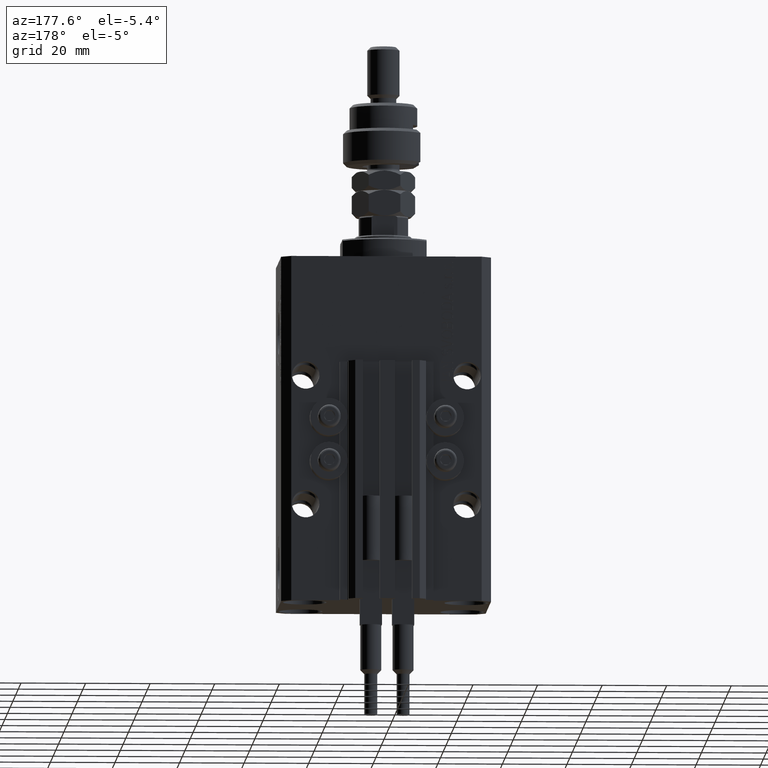
[diagram: clean part render]
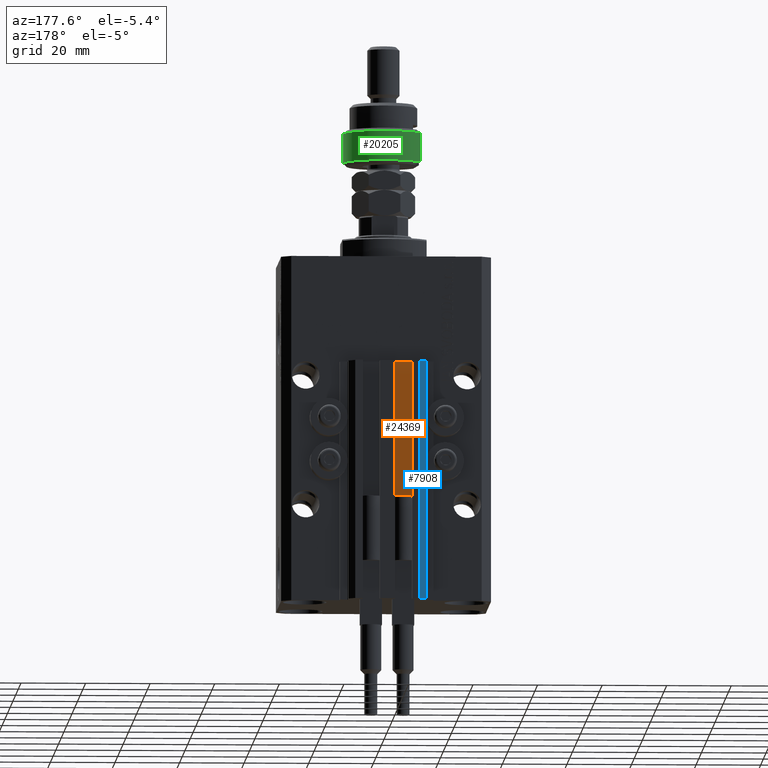
[diagram: same view with three faces highlighted in distinct colors, each labeled with its STEP entity id]
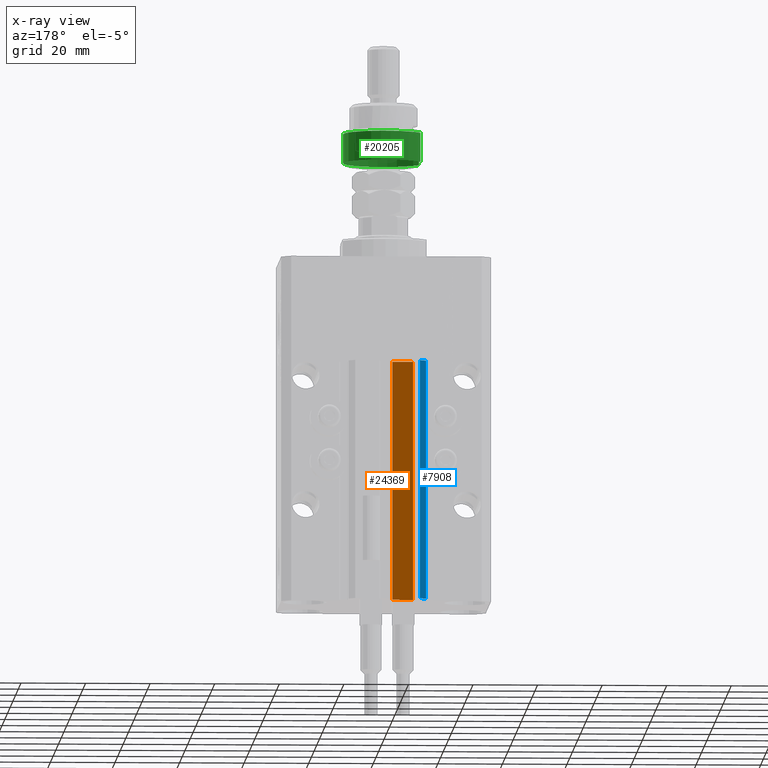
[diagram: x-ray of the same camera — body ghosted, the three highlighted faces saturated]
A machine part, auxiliary view with three faces highlighted in distinct colors.
The next image is the same camera in x-ray (body ghosted, the three faces saturated) — at least one of them is partly hidden behind the body in this view.
Their STEP definitions:

[orange] entity #24369 — the highlighted planar face has unit normal (0, 1, 0).
#3075 = CARTESIAN_POINT ( 'NONE',  ( -1.800000000000000933, 24.49999999999949551, -33.00000000000000000 ) ) ;
#3227 = DIRECTION ( 'NONE',  ( 0.000000000000000000, 0.000000000000000000, 1.000000000000000000 ) ) ;
#3411 = CARTESIAN_POINT ( 'NONE',  ( -1.800000000000000933, 24.49999999999949551, -107.0000000000000000 ) ) ;
#7481 = VECTOR ( 'NONE', #15901, 1000.000000000000000 ) ;
#10298 = DIRECTION ( 'NONE',  ( 0.000000000000000000, 0.000000000000000000, 1.000000000000000000 ) ) ;
#11101 = EDGE_CURVE ( 'NONE', #12050, #41238, #50702, .T. ) ;
#11255 = AXIS2_PLACEMENT_3D ( 'NONE', #43229, #14927, #3227 ) ;
#12050 = VERTEX_POINT ( 'NONE', #25206 ) ;
#12468 = ORIENTED_EDGE ( 'NONE', *, *, #11101, .T. ) ;
#14927 = DIRECTION ( 'NONE',  ( 0.000000000000000000, 1.000000000000000000, -0.000000000000000000 ) ) ;
#15492 = ORIENTED_EDGE ( 'NONE', *, *, #19281, .F. ) ;
#15901 = DIRECTION ( 'NONE',  ( -1.000000000000000000, 0.000000000000000000, 0.000000000000000000 ) ) ;
#19281 = EDGE_CURVE ( 'NONE', #50244, #19423, #31918, .T. ) ;
#19423 = VERTEX_POINT ( 'NONE', #25369 ) ;
#19702 = CARTESIAN_POINT ( 'NONE',  ( -1.800000000000000933, 24.49999999999949551, -33.00000000000000000 ) ) ;
#21013 = LINE ( 'NONE', #36852, #39804 ) ;
#24369 = ADVANCED_FACE ( 'NONE', ( #38552 ), #50518, .T. ) ;
#24386 = DIRECTION ( 'NONE',  ( 0.000000000000000000, 0.000000000000000000, 1.000000000000000000 ) ) ;
#25206 = CARTESIAN_POINT ( 'NONE',  ( -1.800000000000000933, 24.49999999999949551, -107.0000000000000000 ) ) ;
#25334 = VECTOR ( 'NONE', #10298, 1000.000000000000000 ) ;
#25369 = CARTESIAN_POINT ( 'NONE',  ( -8.199999999999999289, 24.49999999999949551, -33.00000000000000000 ) ) ;
#25888 = VECTOR ( 'NONE', #35544, 1000.000000000000000 ) ;
#30053 = CARTESIAN_POINT ( 'NONE',  ( -1.800000000000000933, 24.49999999999949551, -107.0000000000000000 ) ) ;
#31918 = LINE ( 'NONE', #19702, #25888 ) ;
#34452 = LINE ( 'NONE', #30053, #25334 ) ;
#35544 = DIRECTION ( 'NONE',  ( -1.000000000000000000, 0.000000000000000000, 0.000000000000000000 ) ) ;
#36852 = CARTESIAN_POINT ( 'NONE',  ( -8.199999999999999289, 24.49999999999949551, -107.0000000000000000 ) ) ;
#38552 = FACE_OUTER_BOUND ( 'NONE', #47971, .T. ) ;
#39804 = VECTOR ( 'NONE', #24386, 1000.000000000000000 ) ;
#40412 = EDGE_CURVE ( 'NONE', #41238, #19423, #21013, .T. ) ;
#41238 = VERTEX_POINT ( 'NONE', #46236 ) ;
#43003 = ORIENTED_EDGE ( 'NONE', *, *, #50509, .F. ) ;
#43229 = CARTESIAN_POINT ( 'NONE',  ( -1.800000000000000933, 24.49999999999949551, -107.0000000000000000 ) ) ;
#46236 = CARTESIAN_POINT ( 'NONE',  ( -8.199999999999999289, 24.49999999999949551, -107.0000000000000000 ) ) ;
#47155 = ORIENTED_EDGE ( 'NONE', *, *, #40412, .T. ) ;
#47971 = EDGE_LOOP ( 'NONE', ( #15492, #43003, #12468, #47155 ) ) ;
#50244 = VERTEX_POINT ( 'NONE', #3075 ) ;
#50509 = EDGE_CURVE ( 'NONE', #12050, #50244, #34452, .T. ) ;
#50518 = PLANE ( 'NONE',  #11255 ) ;
#50702 = LINE ( 'NONE', #3411, #7481 ) ;

[blue] entity #7908 — the highlighted planar face has unit normal (-0.7071, 0.7071, 0).
#381 = DIRECTION ( 'NONE',  ( -0.7071067811865479058, 0.7071067811865472397, 0.000000000000000000 ) ) ;
#456 = DIRECTION ( 'NONE',  ( 0.000000000000000000, 0.000000000000000000, 1.000000000000000000 ) ) ;
#643 = PLANE ( 'NONE',  #19833 ) ;
#719 = ORIENTED_EDGE ( 'NONE', *, *, #13197, .F. ) ;
#2297 = DIRECTION ( 'NONE',  ( -0.7071067811865472397, -0.7071067811865479058, 0.000000000000000000 ) ) ;
#4660 = VERTEX_POINT ( 'NONE', #38214 ) ;
#6710 = LINE ( 'NONE', #17642, #42912 ) ;
#7908 = ADVANCED_FACE ( 'NONE', ( #8428 ), #643, .T. ) ;
#8428 = FACE_OUTER_BOUND ( 'NONE', #11026, .T. ) ;
#11026 = EDGE_LOOP ( 'NONE', ( #22731, #719, #24728, #18980 ) ) ;
#12900 = CARTESIAN_POINT ( 'NONE',  ( -12.00000000000000000, 28.49999999999948841, -107.0000000000000000 ) ) ;
#13197 = EDGE_CURVE ( 'NONE', #4660, #18402, #15570, .T. ) ;
#15570 = LINE ( 'NONE', #27505, #26636 ) ;
#17424 = EDGE_CURVE ( 'NONE', #48822, #29091, #32653, .T. ) ;
#17642 = CARTESIAN_POINT ( 'NONE',  ( -10.00000000000000000, 30.49999999999948841, -33.00000000000000000 ) ) ;
#18402 = VERTEX_POINT ( 'NONE', #38402 ) ;
#18980 = ORIENTED_EDGE ( 'NONE', *, *, #17424, .T. ) ;
#19833 = AXIS2_PLACEMENT_3D ( 'NONE', #36473, #381, #24510 ) ;
#19964 = DIRECTION ( 'NONE',  ( 0.000000000000000000, 0.000000000000000000, 1.000000000000000000 ) ) ;
#22731 = ORIENTED_EDGE ( 'NONE', *, *, #31754, .F. ) ;
#24510 = DIRECTION ( 'NONE',  ( -0.7071067811865472397, -0.7071067811865479058, 0.000000000000000000 ) ) ;
#24728 = ORIENTED_EDGE ( 'NONE', *, *, #30479, .T. ) ;
#26636 = VECTOR ( 'NONE', #19964, 1000.000000000000000 ) ;
#26643 = CARTESIAN_POINT ( 'NONE',  ( -12.00000000000000000, 28.49999999999948841, -33.00000000000000000 ) ) ;
#27505 = CARTESIAN_POINT ( 'NONE',  ( -10.00000000000000000, 30.49999999999948841, -107.0000000000000000 ) ) ;
#29091 = VERTEX_POINT ( 'NONE', #26643 ) ;
#29701 = LINE ( 'NONE', #46043, #43696 ) ;
#30479 = EDGE_CURVE ( 'NONE', #4660, #48822, #29701, .T. ) ;
#31754 = EDGE_CURVE ( 'NONE', #18402, #29091, #6710, .T. ) ;
#32653 = LINE ( 'NONE', #12900, #49938 ) ;
#36473 = CARTESIAN_POINT ( 'NONE',  ( -10.00000000000000000, 30.49999999999948841, -107.0000000000000000 ) ) ;
#37375 = CARTESIAN_POINT ( 'NONE',  ( -12.00000000000000000, 28.49999999999948841, -107.0000000000000000 ) ) ;
#38214 = CARTESIAN_POINT ( 'NONE',  ( -10.00000000000000000, 30.49999999999948841, -107.0000000000000000 ) ) ;
#38254 = DIRECTION ( 'NONE',  ( -0.7071067811865472397, -0.7071067811865479058, 0.000000000000000000 ) ) ;
#38402 = CARTESIAN_POINT ( 'NONE',  ( -10.00000000000000000, 30.49999999999948841, -33.00000000000000000 ) ) ;
#42912 = VECTOR ( 'NONE', #2297, 999.9999999999998863 ) ;
#43696 = VECTOR ( 'NONE', #38254, 999.9999999999998863 ) ;
#46043 = CARTESIAN_POINT ( 'NONE',  ( -10.00000000000000000, 30.49999999999948841, -107.0000000000000000 ) ) ;
#48822 = VERTEX_POINT ( 'NONE', #37375 ) ;
#49938 = VECTOR ( 'NONE', #456, 1000.000000000000000 ) ;

[green] entity #20205 — the highlighted cylindrical surface (partial cylindrical patch) has radius 12.5 mm, axis along (-0, -0, -1).
#892 = DIRECTION ( 'NONE',  ( -0.000000000000000000, -0.000000000000000000, -1.000000000000000000 ) ) ;
#1852 = VECTOR ( 'NONE', #2963, 1000.000000000000000 ) ;
#2258 = ORIENTED_EDGE ( 'NONE', *, *, #45756, .T. ) ;
#2281 = CARTESIAN_POINT ( 'NONE',  ( -11.22497216032182088, -5.500000000000007105, 10.00000000000000000 ) ) ;
#2963 = DIRECTION ( 'NONE',  ( -0.000000000000000000, -0.000000000000000000, -1.000000000000000000 ) ) ;
#3402 = CYLINDRICAL_SURFACE ( 'NONE', #41700, 12.50000000000000000 ) ;
#4174 = DIRECTION ( 'NONE',  ( -0.000000000000000000, -0.000000000000000000, -1.000000000000000000 ) ) ;
#6401 = CARTESIAN_POINT ( 'NONE',  ( -11.22497216032182443, 5.500000000000000000, 10.00000000000000000 ) ) ;
#8782 = CIRCLE ( 'NONE', #37796, 12.50000000000000000 ) ;
#9682 = CARTESIAN_POINT ( 'NONE',  ( 0.000000000000000000, 0.000000000000000000, 0.9999999999999956701 ) ) ;
#9942 = DIRECTION ( 'NONE',  ( -0.000000000000000000, -0.000000000000000000, 1.000000000000000000 ) ) ;
#10666 = VERTEX_POINT ( 'NONE', #44563 ) ;
#12194 = DIRECTION ( 'NONE',  ( -0.000000000000000000, -0.000000000000000000, 1.000000000000000000 ) ) ;
#14825 = CARTESIAN_POINT ( 'NONE',  ( 0.000000000000000000, 0.000000000000000000, 10.00000000000000000 ) ) ;
#15864 = CARTESIAN_POINT ( 'NONE',  ( 12.50000000000000000, 0.000000000000000000, 0.9999999999999956701 ) ) ;
#19259 = DIRECTION ( 'NONE',  ( -1.000000000000000000, 0.000000000000000000, 0.000000000000000000 ) ) ;
#19514 = FACE_OUTER_BOUND ( 'NONE', #20178, .T. ) ;
#19600 = AXIS2_PLACEMENT_3D ( 'NONE', #14825, #38970, #31202 ) ;
#20178 = EDGE_LOOP ( 'NONE', ( #20648, #34103, #20545, #25478, #2258 ) ) ;
#20205 = ADVANCED_FACE ( 'NONE', ( #19514 ), #3402, .T. ) ;
#20545 = ORIENTED_EDGE ( 'NONE', *, *, #44881, .T. ) ;
#20648 = ORIENTED_EDGE ( 'NONE', *, *, #22122, .F. ) ;
#22122 = EDGE_CURVE ( 'NONE', #50461, #39448, #28169, .T. ) ;
#24750 = VERTEX_POINT ( 'NONE', #2281 ) ;
#25478 = ORIENTED_EDGE ( 'NONE', *, *, #27578, .T. ) ;
#26883 = VECTOR ( 'NONE', #892, 1000.000000000000000 ) ;
#27578 = EDGE_CURVE ( 'NONE', #10666, #31557, #8782, .T. ) ;
#28048 = DIRECTION ( 'NONE',  ( 1.000000000000000000, 0.000000000000000000, 0.000000000000000000 ) ) ;
#28169 = LINE ( 'NONE', #37416, #26883 ) ;
#28482 = EDGE_CURVE ( 'NONE', #50461, #24750, #41990, .T. ) ;
#31202 = DIRECTION ( 'NONE',  ( 1.000000000000000000, 0.000000000000000000, 0.000000000000000000 ) ) ;
#31292 = CARTESIAN_POINT ( 'NONE',  ( -11.22497216032182088, -5.500000000000007105, 12.50000000000000000 ) ) ;
#31557 = VERTEX_POINT ( 'NONE', #15864 ) ;
#31739 = CARTESIAN_POINT ( 'NONE',  ( 0.000000000000000000, 0.000000000000000000, 11.00000000000000000 ) ) ;
#34103 = ORIENTED_EDGE ( 'NONE', *, *, #28482, .T. ) ;
#35166 = LINE ( 'NONE', #31292, #1852 ) ;
#37416 = CARTESIAN_POINT ( 'NONE',  ( -11.22497216032182443, 5.500000000000000000, 12.50000000000000000 ) ) ;
#37796 = AXIS2_PLACEMENT_3D ( 'NONE', #47794, #12194, #28048 ) ;
#37986 = DIRECTION ( 'NONE',  ( 1.000000000000000000, 0.000000000000000000, 0.000000000000000000 ) ) ;
#38970 = DIRECTION ( 'NONE',  ( 0.000000000000000000, 0.000000000000000000, -1.000000000000000000 ) ) ;
#39448 = VERTEX_POINT ( 'NONE', #41068 ) ;
#41068 = CARTESIAN_POINT ( 'NONE',  ( -11.22497216032182443, 5.500000000000000000, 0.9999999999999956701 ) ) ;
#41700 = AXIS2_PLACEMENT_3D ( 'NONE', #31739, #4174, #19259 ) ;
#41990 = CIRCLE ( 'NONE', #19600, 12.50000000000000000 ) ;
#44563 = CARTESIAN_POINT ( 'NONE',  ( -11.22497216032182088, -5.500000000000007105, 0.9999999999999956701 ) ) ;
#44881 = EDGE_CURVE ( 'NONE', #24750, #10666, #35166, .T. ) ;
#45014 = AXIS2_PLACEMENT_3D ( 'NONE', #9682, #9942, #37986 ) ;
#45756 = EDGE_CURVE ( 'NONE', #31557, #39448, #48342, .T. ) ;
#47794 = CARTESIAN_POINT ( 'NONE',  ( 0.000000000000000000, 0.000000000000000000, 0.9999999999999956701 ) ) ;
#48342 = CIRCLE ( 'NONE', #45014, 12.50000000000000000 ) ;
#50461 = VERTEX_POINT ( 'NONE', #6401 ) ;